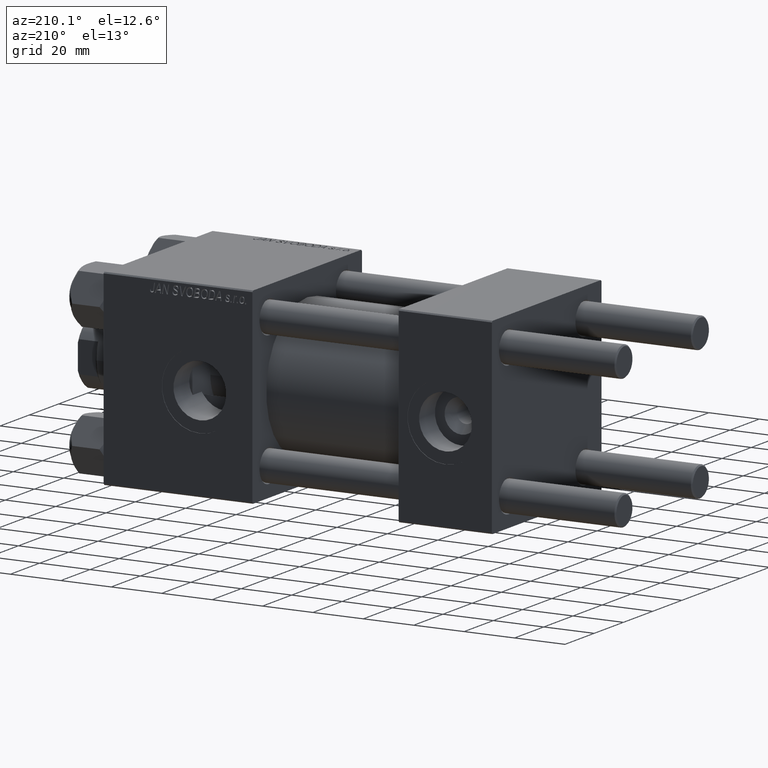
[diagram: clean part render]
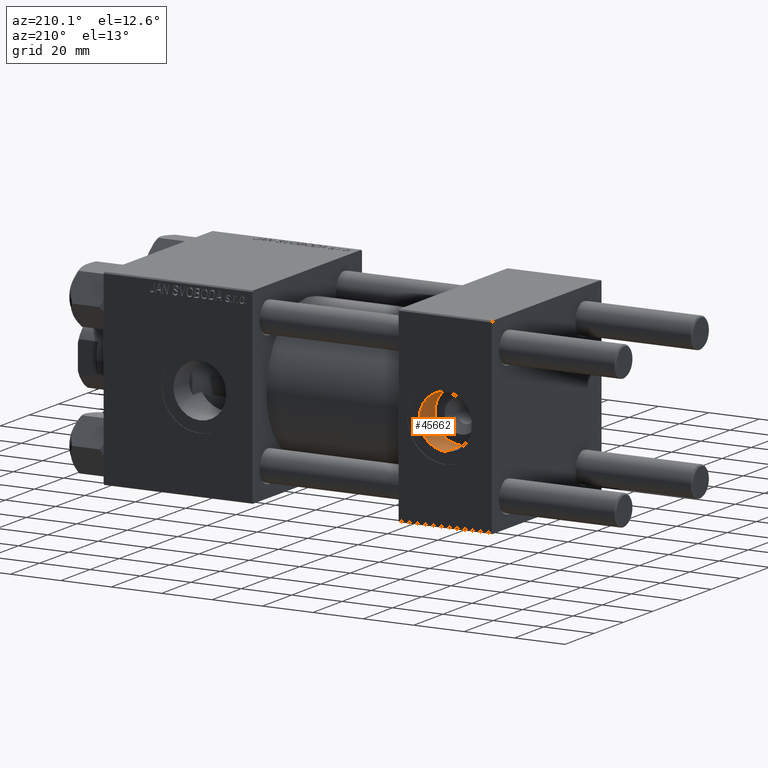
[diagram: same view with one face highlighted and labeled with its STEP entity id]
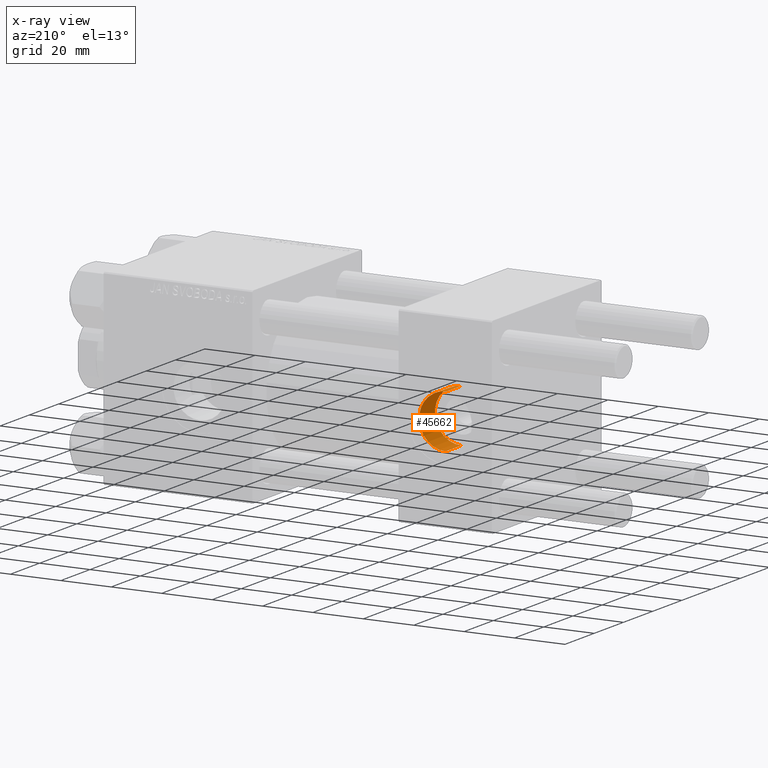
[diagram: x-ray of the same camera — body ghosted, the highlighted face saturated]
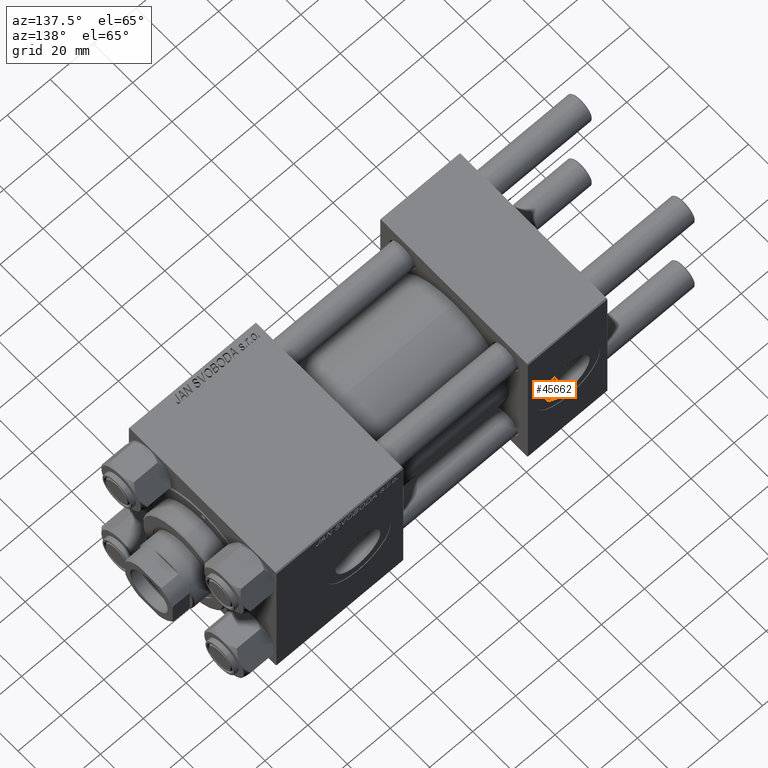
[diagram: same view with one face highlighted and labeled with its STEP entity id]
A machine part, auxiliary view. The second image highlights one B-rep face of the part: STEP entity #45662.
The next image is the same camera in x-ray: the body ghosted, the highlighted face saturated — about 0% of this face is hidden behind the body in this view.
A second angle (auxiliary view) of the same face is appended — the face is thin or edge-on in the first view.
In plain terms, the highlighted cylindrical surface (edge-blend (fillet) strip) has radius 10.48 mm, axis along (0, 1, 0).
Its self-contained STEP definition (entity closure, byte-faithful):
#19 = DIRECTION ( 'NONE',  ( 0.000000000000000000, 1.000000000000000000, 0.000000000000000000 ) ) ;
#444 = EDGE_CURVE ( 'NONE', #5212, #11976, #39363, .T. ) ;
#1702 = EDGE_CURVE ( 'NONE', #15708, #5212, #16829, .T. ) ;
#1845 = VERTEX_POINT ( 'NONE', #51777 ) ;
#4625 = ORIENTED_EDGE ( 'NONE', *, *, #30942, .F. ) ;
#5212 = VERTEX_POINT ( 'NONE', #47402 ) ;
#7870 = DIRECTION ( 'NONE',  ( 0.000000000000000000, 0.000000000000000000, 1.000000000000000000 ) ) ;
#10692 = CARTESIAN_POINT ( 'NONE',  ( 18.50000000000000000, 26.49999999999999289, 0.000000000000000000 ) ) ;
#11196 = CYLINDRICAL_SURFACE ( 'NONE', #44224, 10.48000000000000043 ) ;
#11976 = VERTEX_POINT ( 'NONE', #31783 ) ;
#14492 = DIRECTION ( 'NONE',  ( -0.000000000000000000, 1.000000000000000000, -0.000000000000000000 ) ) ;
#15708 = VERTEX_POINT ( 'NONE', #17256 ) ;
#15868 = ORIENTED_EDGE ( 'NONE', *, *, #444, .T. ) ;
#16829 = LINE ( 'NONE', #28869, #49454 ) ;
#16900 = CIRCLE ( 'NONE', #21082, 10.48000000000000043 ) ;
#17256 = CARTESIAN_POINT ( 'NONE',  ( 18.50000000000000000, 26.49999999999999289, 10.48000000000000043 ) ) ;
#19765 = DIRECTION ( 'NONE',  ( 0.000000000000000000, 0.000000000000000000, 1.000000000000000000 ) ) ;
#21082 = AXIS2_PLACEMENT_3D ( 'NONE', #32848, #28147, #19765 ) ;
#22334 = CARTESIAN_POINT ( 'NONE',  ( 18.50000000000000000, 26.49999999999999289, -10.48000000000000043 ) ) ;
#22441 = DIRECTION ( 'NONE',  ( -0.000000000000000000, 1.000000000000000000, -0.000000000000000000 ) ) ;
#25222 = ORIENTED_EDGE ( 'NONE', *, *, #47229, .F. ) ;
#26269 = LINE ( 'NONE', #22334, #40106 ) ;
#28147 = DIRECTION ( 'NONE',  ( 0.000000000000000000, 1.000000000000000000, 0.000000000000000000 ) ) ;
#28869 = CARTESIAN_POINT ( 'NONE',  ( 18.50000000000000000, 26.49999999999999289, 10.48000000000000043 ) ) ;
#30942 = EDGE_CURVE ( 'NONE', #15708, #1845, #16900, .T. ) ;
#31783 = CARTESIAN_POINT ( 'NONE',  ( 18.50000000000000000, 37.29999999999999005, -10.48000000000000043 ) ) ;
#32848 = CARTESIAN_POINT ( 'NONE',  ( 18.50000000000000000, 26.49999999999999289, 0.000000000000000000 ) ) ;
#34208 = EDGE_LOOP ( 'NONE', ( #25222, #4625, #45475, #15868 ) ) ;
#35867 = CARTESIAN_POINT ( 'NONE',  ( 18.50000000000000000, 37.29999999999999005, 0.000000000000000000 ) ) ;
#38426 = DIRECTION ( 'NONE',  ( 0.000000000000000000, 0.000000000000000000, 1.000000000000000000 ) ) ;
#39363 = CIRCLE ( 'NONE', #48548, 10.48000000000000043 ) ;
#40106 = VECTOR ( 'NONE', #14492, 1000.000000000000000 ) ;
#42364 = FACE_OUTER_BOUND ( 'NONE', #34208, .T. ) ;
#44224 = AXIS2_PLACEMENT_3D ( 'NONE', #10692, #22441, #38426 ) ;
#44841 = DIRECTION ( 'NONE',  ( -0.000000000000000000, 1.000000000000000000, -0.000000000000000000 ) ) ;
#45475 = ORIENTED_EDGE ( 'NONE', *, *, #1702, .T. ) ;
#45662 = ADVANCED_FACE ( 'NONE', ( #42364 ), #11196, .F. ) ;
#47229 = EDGE_CURVE ( 'NONE', #1845, #11976, #26269, .T. ) ;
#47402 = CARTESIAN_POINT ( 'NONE',  ( 18.50000000000000000, 37.29999999999999005, 10.48000000000000043 ) ) ;
#48548 = AXIS2_PLACEMENT_3D ( 'NONE', #35867, #19, #7870 ) ;
#49454 = VECTOR ( 'NONE', #44841, 1000.000000000000000 ) ;
#51777 = CARTESIAN_POINT ( 'NONE',  ( 18.50000000000000000, 26.49999999999999289, -10.48000000000000043 ) ) ;